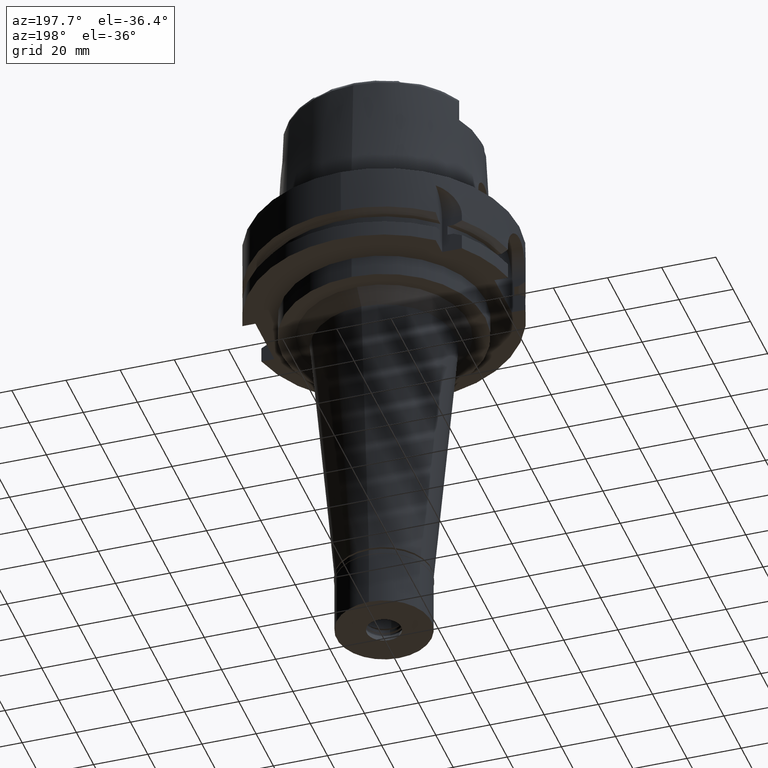
[diagram: clean part render]
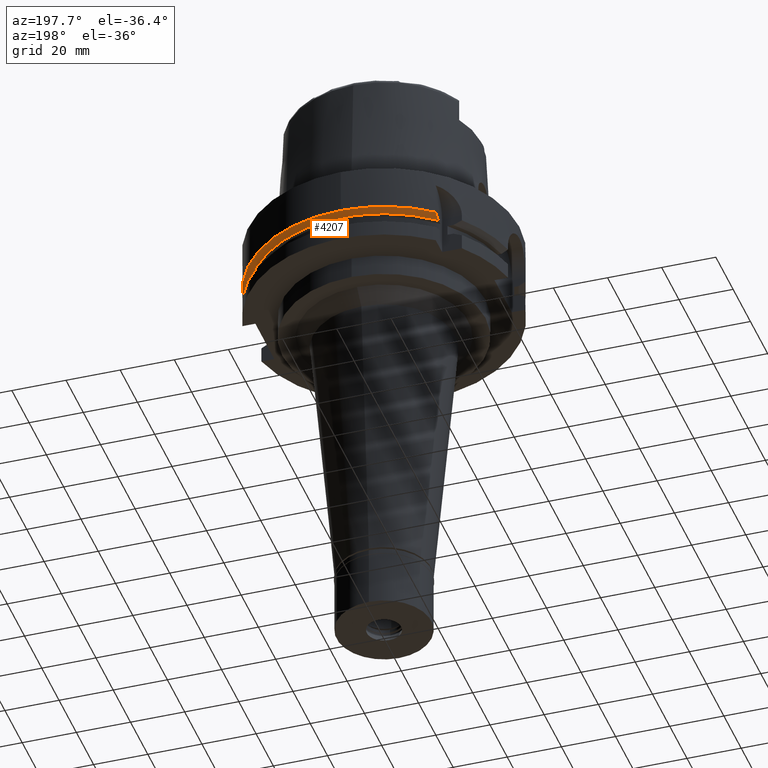
[diagram: same view with one face highlighted and labeled with its STEP entity id]
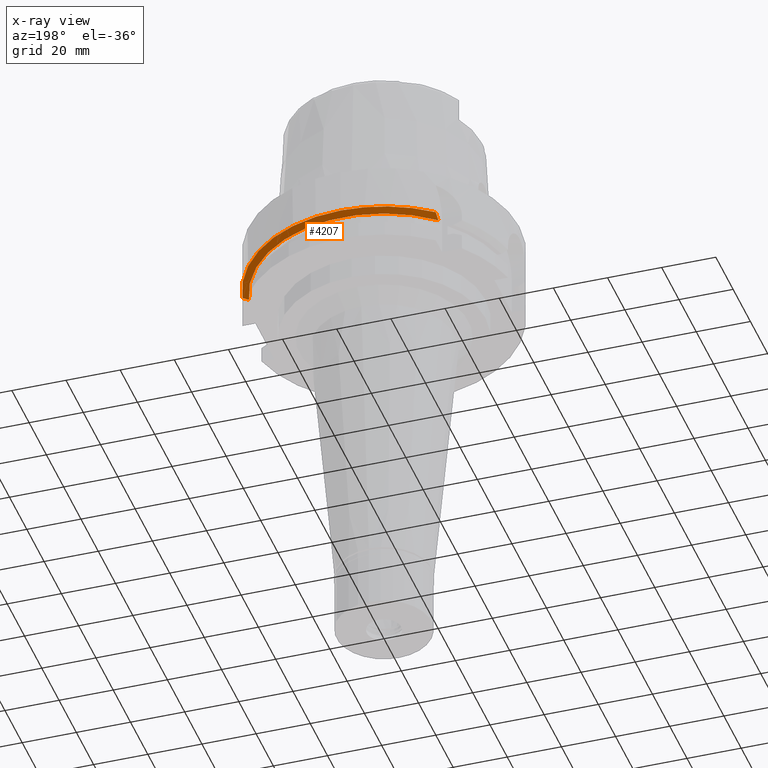
[diagram: x-ray of the same camera — body ghosted, the highlighted face saturated]
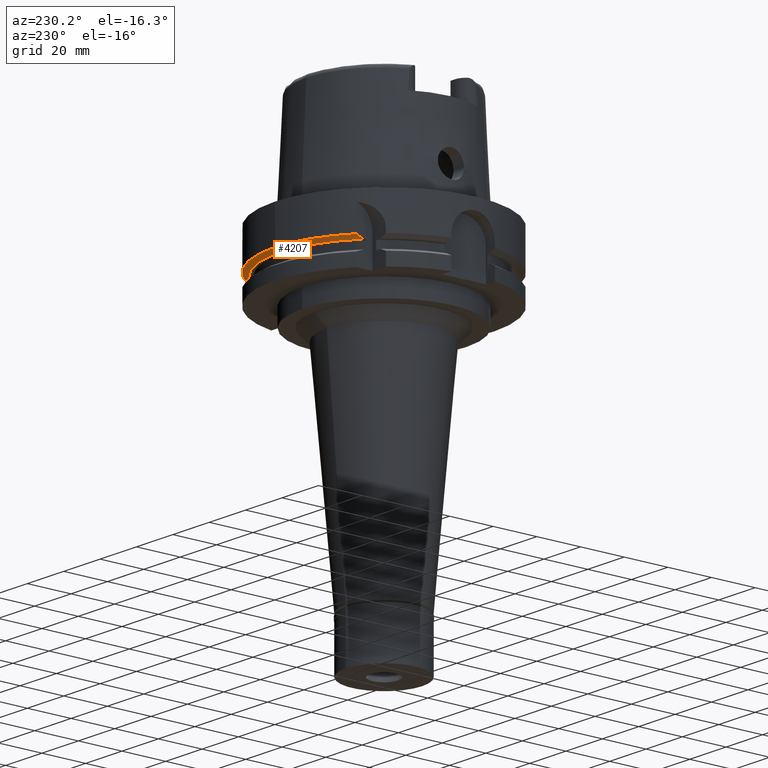
[diagram: same view with one face highlighted and labeled with its STEP entity id]
A machine part, auxiliary view. The second image highlights one B-rep face of the part: STEP entity #4207.
The next image is the same camera in x-ray: the body ghosted, the highlighted face saturated — about 0% of this face is hidden behind the body in this view.
A second angle (auxiliary view) of the same face is appended — the face is thin or edge-on in the first view.
In plain terms, the highlighted conical surface has half-angle 60 deg.
Its self-contained STEP definition (entity closure, byte-faithful):
#11 = VERTEX_POINT ( 'NONE', #931 ) ;
#106 = ORIENTED_EDGE ( 'NONE', *, *, #890, .T. ) ;
#121 = CARTESIAN_POINT ( 'NONE',  ( 48.77499359303000404, 11.00000000000000000, -16.75240473580999989 ) ) ;
#130 = CARTESIAN_POINT ( 'NONE',  ( 46.33477721644000269, 11.00000000000000000, -18.12500000000000000 ) ) ;
#143 = VERTEX_POINT ( 'NONE', #4494 ) ;
#669 = DIRECTION ( 'NONE',  ( 0.0000000000000000000, 0.0000000000000000000, 1.000000000000000000 ) ) ;
#762 = DIRECTION ( 'NONE',  ( 0.0000000000000000000, 1.000000000000000000, 0.0000000000000000000 ) ) ;
#791 = CARTESIAN_POINT ( 'NONE',  ( -31.50000355958999876, 38.82975374304999860, -16.75239179145000179 ) ) ;
#890 = EDGE_CURVE ( 'NONE', #4242, #1822, #1107, .T. ) ;
#931 = CARTESIAN_POINT ( 'NONE',  ( 48.77499359303000404, 11.00000000000000000, -16.75240473580999989 ) ) ;
#1040 = DIRECTION ( 'NONE',  ( 0.9754998718605770724, 0.2199999999999950051, 0.0000000000000000000 ) ) ;
#1056 = ORIENTED_EDGE ( 'NONE', *, *, #4579, .F. ) ;
#1107 = B_SPLINE_CURVE_WITH_KNOTS ( 'NONE', 3,
 ( #1209, #2507, #4661, #791 ),
 .UNSPECIFIED., .F., .F.,
 ( 4, 4 ),
 ( 0.0000000000000000000, 1.000000000000000000 ),
 .UNSPECIFIED. ) ;
#1209 = CARTESIAN_POINT ( 'NONE',  ( -31.50000097280999967, 35.71639618471999711, -18.12500000000000000 ) ) ;
#1575 = EDGE_CURVE ( 'NONE', #3662, #11, #3423, .T. ) ;
#1602 = DIRECTION ( 'NONE',  ( 0.0000000000000000000, 1.000000000000000000, 0.0000000000000000000 ) ) ;
#1771 = CIRCLE ( 'NONE', #2311, 50.00000000000000711 ) ;
#1822 = VERTEX_POINT ( 'NONE', #3321 ) ;
#2214 = CIRCLE ( 'NONE', #4041, 50.00000000000000000 ) ;
#2227 = EDGE_CURVE ( 'NONE', #3662, #4242, #4382, .T. ) ;
#2267 = CARTESIAN_POINT ( 'NONE',  ( 48.50399904748000068, 11.00000000000000000, -16.90503024962000111 ) ) ;
#2293 = CARTESIAN_POINT ( 'NONE',  ( 47.96191616323000062, 11.00000000000000000, -17.21020456769999996 ) ) ;
#2311 = AXIS2_PLACEMENT_3D ( 'NONE', #5415, #4907, #1040 ) ;
#2507 = CARTESIAN_POINT ( 'NONE',  ( -31.50000195460757979, 36.73337253298934257, -17.68464608511978042 ) ) ;
#2508 = EDGE_LOOP ( 'NONE', ( #1056, #5449, #4833, #3886, #106 ) ) ;
#2703 = CARTESIAN_POINT ( 'NONE',  ( 46.60605711264999940, 11.00000000000000000, -17.97261191788999923 ) ) ;
#2781 = CONICAL_SURFACE ( 'NONE', #3767, 48.81129763208999606, 1.047197551196400456 ) ;
#2956 = DIRECTION ( 'NONE',  ( 0.9729578356532629924, 0.2309827916553914839, 0.0000000000000000000 ) ) ;
#3007 = CARTESIAN_POINT ( 'NONE',  ( 0.0000000000000000000, 0.0000000000000000000, -18.12500000000000000 ) ) ;
#3239 = DIRECTION ( 'NONE',  ( 0.0000000000000000000, 0.0000000000000000000, 1.000000000000000000 ) ) ;
#3321 = CARTESIAN_POINT ( 'NONE',  ( -31.50000355958999876, 38.82975374304999860, -16.75239179145000179 ) ) ;
#3423 = B_SPLINE_CURVE_WITH_KNOTS ( 'NONE', 3,
 ( #5453, #2703, #4425, #2293, #2267, #121 ),
 .UNSPECIFIED., .F., .F.,
 ( 4, 1, 1, 4 ),
 ( 0.0000000000000000000, 0.3333333333333000081, 0.6666666666667000474, 1.000000000000000000 ),
 .UNSPECIFIED. ) ;
#3662 = VERTEX_POINT ( 'NONE', #130 ) ;
#3766 = FACE_OUTER_BOUND ( 'NONE', #2508, .T. ) ;
#3767 = AXIS2_PLACEMENT_3D ( 'NONE', #4484, #3239, #762 ) ;
#3822 = EDGE_CURVE ( 'NONE', #11, #143, #1771, .T. ) ;
#3886 = ORIENTED_EDGE ( 'NONE', *, *, #2227, .T. ) ;
#4041 = AXIS2_PLACEMENT_3D ( 'NONE', #4131, #669, #1602 ) ;
#4090 = CARTESIAN_POINT ( 'NONE',  ( -31.50000097280999967, 35.71639618471999711, -18.12500000000000000 ) ) ;
#4131 = CARTESIAN_POINT ( 'NONE',  ( 0.0000000000000000000, 0.0000000000000000000, -16.75240473580999989 ) ) ;
#4207 = ADVANCED_FACE ( 'NONE', ( #3766 ), #2781, .T. ) ;
#4242 = VERTEX_POINT ( 'NONE', #4090 ) ;
#4382 = CIRCLE ( 'NONE', #5010, 47.62259526418999656 ) ;
#4425 = CARTESIAN_POINT ( 'NONE',  ( 47.14851446811000102, 11.00000000000000000, -17.66774350266999960 ) ) ;
#4484 = CARTESIAN_POINT ( 'NONE',  ( 0.0000000000000000000, 0.0000000000000000000, -17.43870236789999950 ) ) ;
#4494 = CARTESIAN_POINT ( 'NONE',  ( 0.0000000000000000000, 50.00000000000000000, -16.75240473580999989 ) ) ;
#4579 = EDGE_CURVE ( 'NONE', #143, #1822, #2214, .T. ) ;
#4661 = CARTESIAN_POINT ( 'NONE',  ( -31.50000711004718212, 37.77100375014965294, -17.22711240004090172 ) ) ;
#4724 = DIRECTION ( 'NONE',  ( 0.0000000000000000000, 0.0000000000000000000, 1.000000000000000000 ) ) ;
#4833 = ORIENTED_EDGE ( 'NONE', *, *, #1575, .F. ) ;
#4907 = DIRECTION ( 'NONE',  ( 0.0000000000000000000, 0.0000000000000000000, 1.000000000000000000 ) ) ;
#5010 = AXIS2_PLACEMENT_3D ( 'NONE', #3007, #4724, #2956 ) ;
#5415 = CARTESIAN_POINT ( 'NONE',  ( 0.0000000000000000000, 0.0000000000000000000, -16.75240473580999989 ) ) ;
#5449 = ORIENTED_EDGE ( 'NONE', *, *, #3822, .F. ) ;
#5453 = CARTESIAN_POINT ( 'NONE',  ( 46.33477721644000269, 11.00000000000000000, -18.12500000000000000 ) ) ;